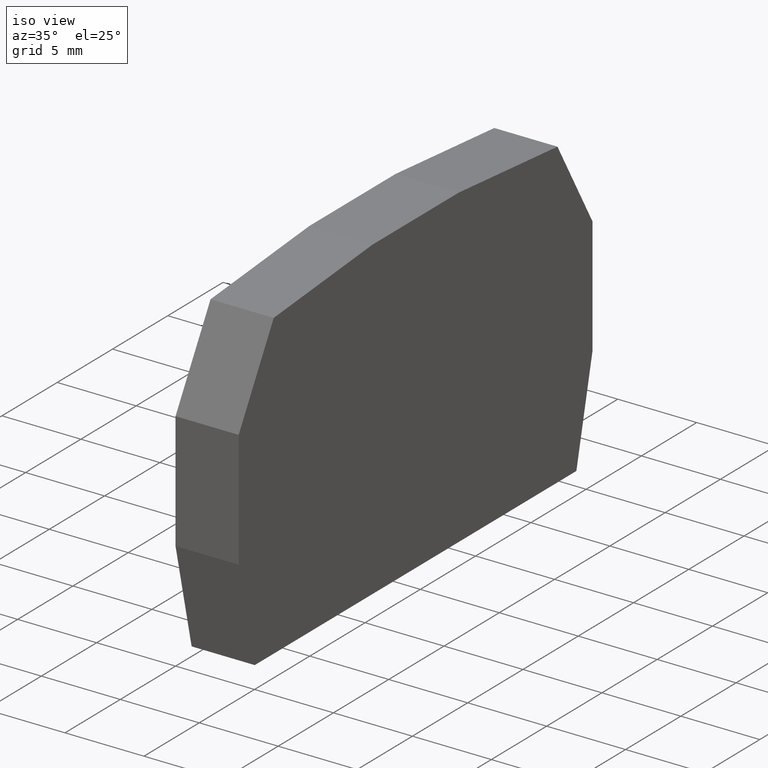
[diagram: clean part render]
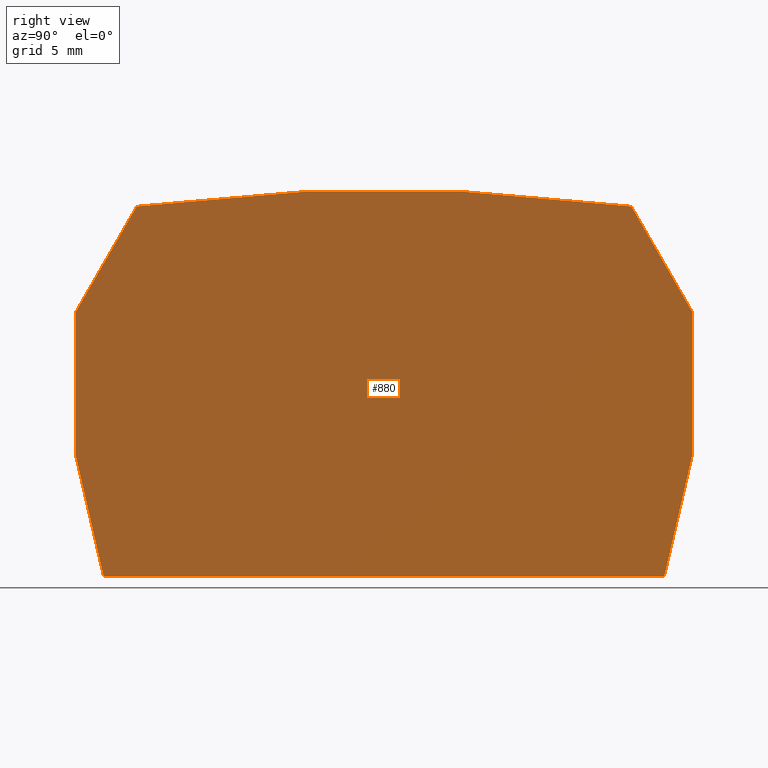
[diagram: tour spotlight — one face highlighted and labeled with its STEP entity id]
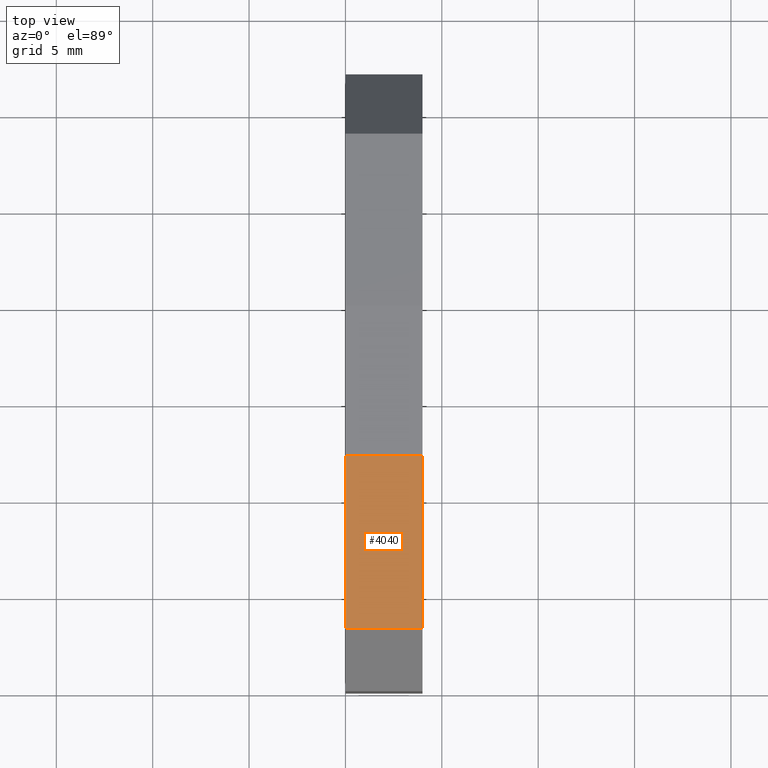
[diagram: tour spotlight — one face highlighted and labeled with its STEP entity id]
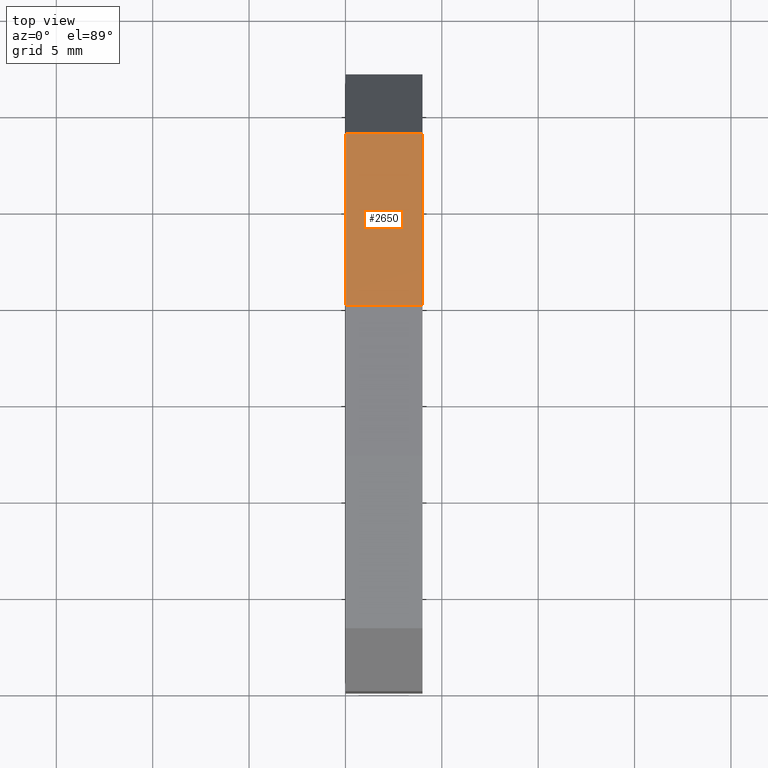
[diagram: tour spotlight — one face highlighted and labeled with its STEP entity id]
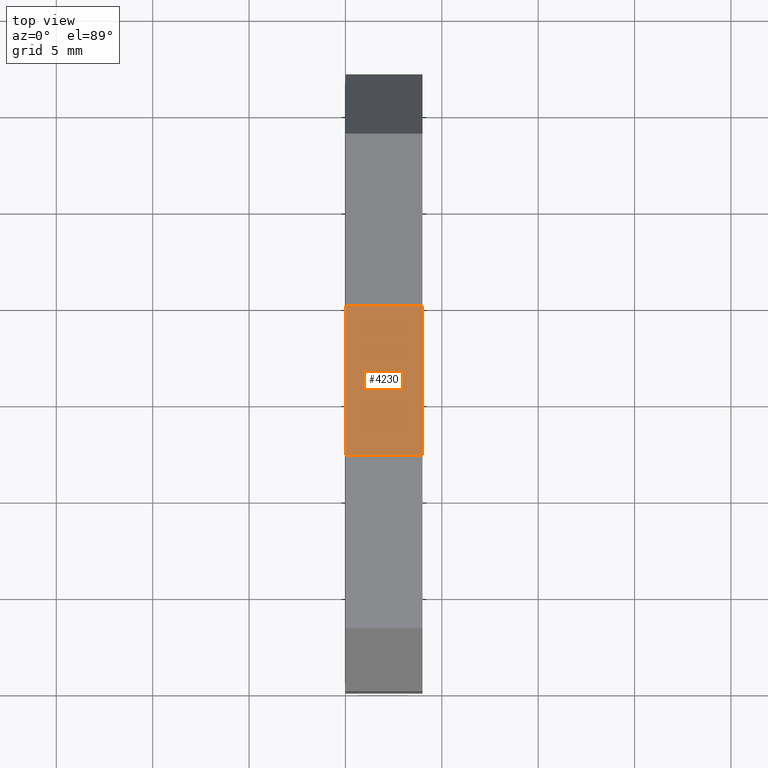
[diagram: tour spotlight — one face highlighted and labeled with its STEP entity id]
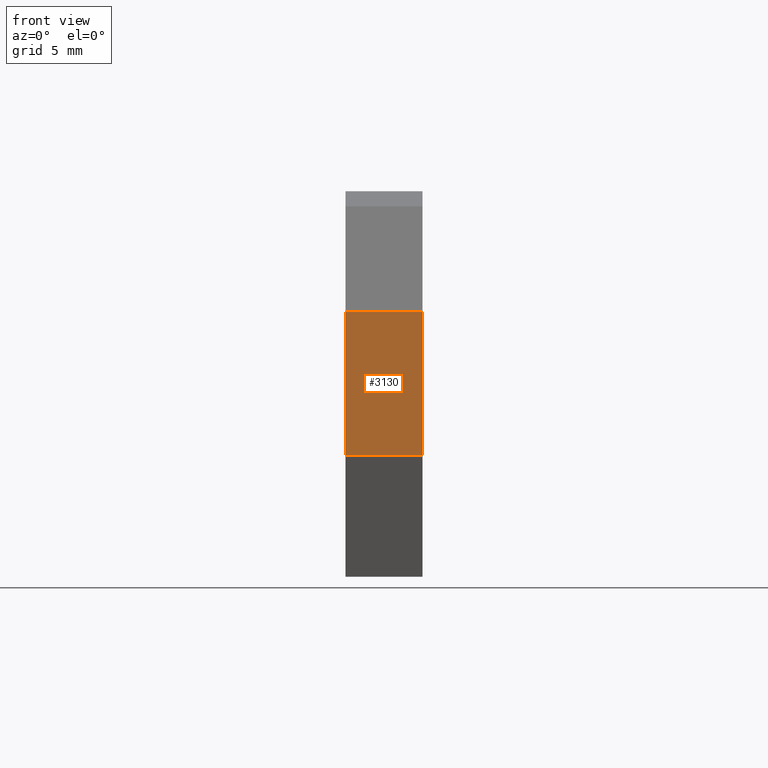
[diagram: tour spotlight — one face highlighted and labeled with its STEP entity id]
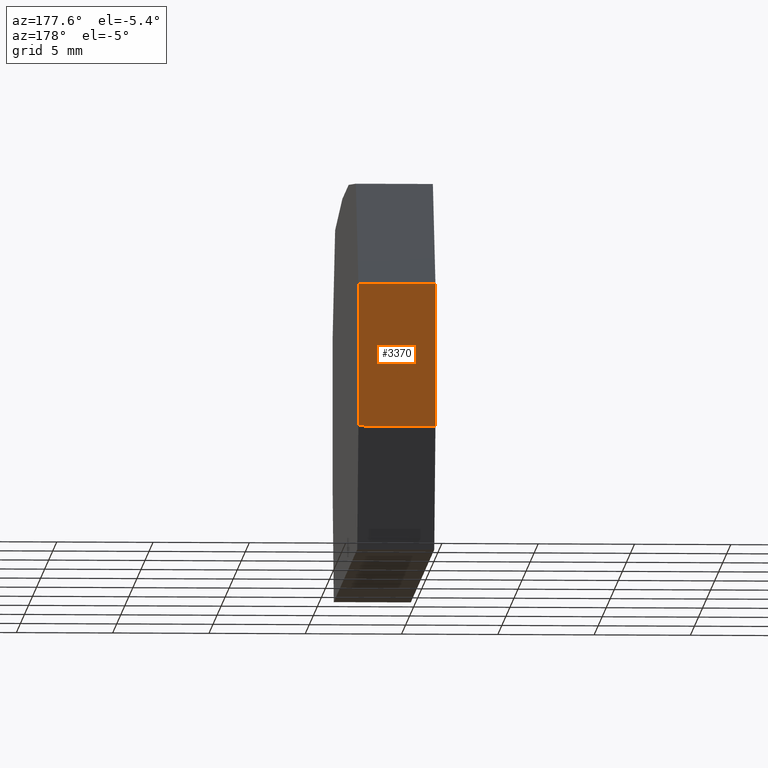
[diagram: tour spotlight — one face highlighted and labeled with its STEP entity id]
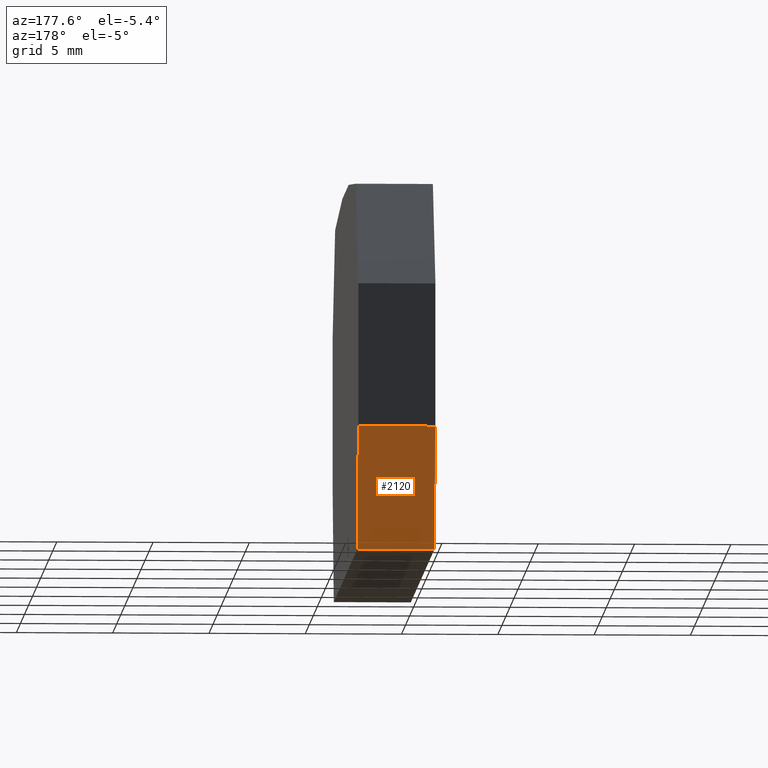
[diagram: tour spotlight — one face highlighted and labeled with its STEP entity id]
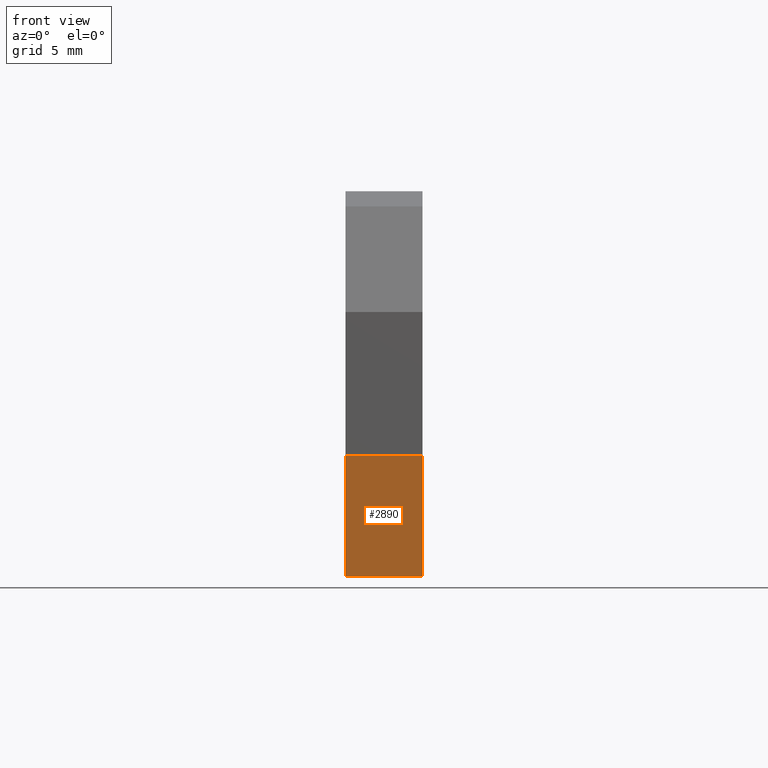
[diagram: tour spotlight — one face highlighted and labeled with its STEP entity id]
A machine part: a face-by-face anatomy tour. The part has 12 B-rep faces; the first image is the clean iso view, then the 8 largest visible faces are spotlighted one at a time (largest first), each with its STEP entity span.

Face 1 — right view, entity #880. In plain terms, the highlighted planar face has unit normal (-1, 0, 0).
Definition (entity closure, byte-faithful):
#10=CARTESIAN_POINT('',(20.2091964718262,86.2957323155951,
4.00000000000001));
#20=DIRECTION('',(0.,0.,1.));
#30=DIRECTION('',(1.,0.,0.));
#40=AXIS2_PLACEMENT_3D('',#10,#20,#30);
#50=PLANE('',#40);
#60=CARTESIAN_POINT('',(41.4852422445195,86.2957323155951,
4.00000000000001));
#70=DIRECTION('',(0.224951054345037,0.974370064784965,0.));
#80=VECTOR('',#70,1.);
#90=LINE('',#60,#80);
#100=CARTESIAN_POINT('',(37.0173254335857,66.9430584408326,
4.00000000000001));
#110=VERTEX_POINT('',#100);
#120=CARTESIAN_POINT('',(38.471795037686,73.2430584408381,
4.00000000000001));
#130=VERTEX_POINT('',#120);
#140=EDGE_CURVE('',#110,#130,#90,.T.);
#150=ORIENTED_EDGE('',*,*,#140,.F.);
#160=CARTESIAN_POINT('',(38.4717950376948,86.2957323155951,
4.00000000000001));
#170=DIRECTION('',(6.80122624885371E-13,1.,0.));
#180=VECTOR('',#170,1.);
#190=LINE('',#160,#180);
#200=CARTESIAN_POINT('',(38.471795037691,80.6770330370464,
4.00000000000001));
#210=VERTEX_POINT('',#200);
#220=EDGE_CURVE('',#130,#210,#190,.T.);
#230=ORIENTED_EDGE('',*,*,#220,.F.);
#240=CARTESIAN_POINT('',(35.2278374967297,86.2957323155951,
4.00000000000001));
#250=DIRECTION('',(-0.4999999999995,0.866025403784727,0.));
#260=VECTOR('',#250,1.);
#270=LINE('',#240,#260);
#280=CARTESIAN_POINT('',(35.305351863756,86.1614734935887,
4.00000000000001));
#290=VERTEX_POINT('',#280);
#300=EDGE_CURVE('',#210,#290,#270,.T.);
#310=ORIENTED_EDGE('',*,*,#300,.F.);
#320=CARTESIAN_POINT('',(20.2091964718262,87.4822159532185,
4.00000000000001));
#330=DIRECTION('',(0.996194698091687,-0.0871557427483274,0.));
#340=VECTOR('',#330,1.);
#350=LINE('',#320,#340);
#360=CARTESIAN_POINT('',(26.3717950376929,86.9430584408399,
4.00000000000001));
#370=VERTEX_POINT('',#360);
#380=EDGE_CURVE('',#370,#290,#350,.T.);
#390=ORIENTED_EDGE('',*,*,#380,.T.);
#400=CARTESIAN_POINT('',(30.9622604321233,86.9430584408368,
4.00000000000001));
#410=DIRECTION('',(-1.,6.73405775586389E-13,0.));
#420=VECTOR('',#410,1.);
#430=LINE('',#400,#420);
#440=CARTESIAN_POINT('',(18.5717950376847,86.9430584408452,
4.00000000000001));
#450=VERTEX_POINT('',#440);
#460=EDGE_CURVE('',#370,#450,#430,.T.);
#470=ORIENTED_EDGE('',*,*,#460,.F.);
#480=CARTESIAN_POINT('',(20.2091964718262,87.0863125039725,
4.00000000000001));
#490=DIRECTION('',(-0.996194698091806,-0.0871557427469682,0.));
#500=VECTOR('',#490,1.);
#510=LINE('',#480,#500);
#520=CARTESIAN_POINT('',(9.63823821163448,86.1614734936074,
4.00000000000001));
#530=VERTEX_POINT('',#520);
#540=EDGE_CURVE('',#450,#530,#510,.T.);
#550=ORIENTED_EDGE('',*,*,#540,.F.);
#560=CARTESIAN_POINT('',(9.71575257865031,86.2957323155951,
4.00000000000001));
#570=DIRECTION('',(0.500000000000682,0.866025403784045,0.));
#580=VECTOR('',#570,1.);
#590=LINE('',#560,#580);
#600=CARTESIAN_POINT('',(6.47179503769135,80.6770330370682,
4.00000000000001));
#610=VERTEX_POINT('',#600);
#620=EDGE_CURVE('',#610,#530,#590,.T.);
#630=ORIENTED_EDGE('',*,*,#620,.T.);
#640=CARTESIAN_POINT('',(6.4717950376952,86.2957323155951,
4.00000000000001));
#650=DIRECTION('',(6.84341472378946E-13,1.,0.));
#660=VECTOR('',#650,1.);
#670=LINE('',#640,#660);
#680=CARTESIAN_POINT('',(6.47179503768626,73.2430584408599,
4.00000000000001));
#690=VERTEX_POINT('',#680);
#700=EDGE_CURVE('',#690,#610,#670,.T.);
#710=ORIENTED_EDGE('',*,*,#700,.T.);
#720=CARTESIAN_POINT('',(3.45834783087646,86.2957323155951,
4.00000000000001));
#730=DIRECTION('',(-0.224951054343708,0.974370064785272,0.));
#740=VECTOR('',#730,1.);
#750=LINE('',#720,#740);
#760=CARTESIAN_POINT('',(7.92626464177793,66.9430584408525,
4.00000000000001));
#770=VERTEX_POINT('',#760);
#780=EDGE_CURVE('',#770,#690,#750,.T.);
#790=ORIENTED_EDGE('',*,*,#780,.T.);
#800=CARTESIAN_POINT('',(20.2091964718262,66.9430584408441,
4.00000000000001));
#810=DIRECTION('',(-1.,6.82232048632159E-13,0.));
#820=VECTOR('',#810,1.);
#830=LINE('',#800,#820);
#840=EDGE_CURVE('',#110,#770,#830,.T.);
#850=ORIENTED_EDGE('',*,*,#840,.T.);
#860=EDGE_LOOP('',(#850,#790,#710,#630,#550,#470,#390,#310,#230,#150));
#870=FACE_OUTER_BOUND('',#860,.T.);
#880=ADVANCED_FACE('',(#870),#50,.F.);

Face 2 — top view, entity #4040. In plain terms, the highlighted planar face has unit normal (0, -0.0872, 0.9962).
Definition (entity closure, byte-faithful):
#280=CARTESIAN_POINT('',(35.305351863756,86.1614734935887,
4.00000000000001));
#290=VERTEX_POINT('',#280);
#320=CARTESIAN_POINT('',(20.2091964718262,87.4822159532185,
4.00000000000001));
#330=DIRECTION('',(0.996194698091687,-0.0871557427483274,0.));
#340=VECTOR('',#330,1.);
#350=LINE('',#320,#340);
#360=CARTESIAN_POINT('',(26.3717950376929,86.9430584408399,
4.00000000000001));
#370=VERTEX_POINT('',#360);
#380=EDGE_CURVE('',#370,#290,#350,.T.);
#1470=CARTESIAN_POINT('',(26.3717950376929,86.9430584408399,
8.00000000000001));
#1480=VERTEX_POINT('',#1470);
#1510=CARTESIAN_POINT('',(20.2091964718262,87.4822159532185,
8.00000000000001));
#1520=DIRECTION('',(0.996194698091687,-0.0871557427483274,0.));
#1530=VECTOR('',#1520,1.);
#1540=LINE('',#1510,#1530);
#1550=CARTESIAN_POINT('',(35.305351863756,86.1614734935887,
8.00000000000001));
#1560=VERTEX_POINT('',#1550);
#1570=EDGE_CURVE('',#1480,#1560,#1540,.T.);
#3520=CARTESIAN_POINT('',(35.305351863756,86.1614734935887,
4.00000000000001));
#3530=DIRECTION('',(0.,0.,-1.));
#3540=VECTOR('',#3530,1.);
#3550=LINE('',#3520,#3540);
#3560=EDGE_CURVE('',#1560,#290,#3550,.T.);
#3880=CARTESIAN_POINT('',(26.3717950376929,86.9430584408399,
4.00000000000001));
#3890=DIRECTION('',(0.0871557427483274,0.996194698091687,0.));
#3900=DIRECTION('',(0.996194698091687,-0.0871557427483274,0.));
#3910=AXIS2_PLACEMENT_3D('',#3880,#3890,#3900);
#3920=PLANE('',#3910);
#3930=ORIENTED_EDGE('',*,*,#3560,.T.);
#3940=ORIENTED_EDGE('',*,*,#1570,.T.);
#3950=CARTESIAN_POINT('',(26.3717950376929,86.9430584408399,
4.00000000000001));
#3960=DIRECTION('',(0.,0.,1.));
#3970=VECTOR('',#3960,1.);
#3980=LINE('',#3950,#3970);
#3990=EDGE_CURVE('',#370,#1480,#3980,.T.);
#4000=ORIENTED_EDGE('',*,*,#3990,.T.);
#4010=ORIENTED_EDGE('',*,*,#380,.F.);
#4020=EDGE_LOOP('',(#4010,#4000,#3940,#3930));
#4030=FACE_OUTER_BOUND('',#4020,.T.);
#4040=ADVANCED_FACE('',(#4030),#3920,.T.);

Face 3 — top view, entity #2650. In plain terms, the highlighted planar face has unit normal (0, 0.0872, 0.9962).
Definition (entity closure, byte-faithful):
#440=CARTESIAN_POINT('',(18.5717950376847,86.9430584408452,
4.00000000000001));
#450=VERTEX_POINT('',#440);
#480=CARTESIAN_POINT('',(20.2091964718262,87.0863125039725,
4.00000000000001));
#490=DIRECTION('',(-0.996194698091806,-0.0871557427469682,0.));
#500=VECTOR('',#490,1.);
#510=LINE('',#480,#500);
#520=CARTESIAN_POINT('',(9.63823821163448,86.1614734936074,
4.00000000000001));
#530=VERTEX_POINT('',#520);
#540=EDGE_CURVE('',#450,#530,#510,.T.);
#1310=CARTESIAN_POINT('',(9.63823821163448,86.1614734936074,
8.00000000000001));
#1320=VERTEX_POINT('',#1310);
#1350=CARTESIAN_POINT('',(20.2091964718262,87.0863125039725,
8.00000000000001));
#1360=DIRECTION('',(-0.996194698091806,-0.0871557427469682,0.));
#1370=VECTOR('',#1360,1.);
#1380=LINE('',#1350,#1370);
#1390=CARTESIAN_POINT('',(18.5717950376979,86.9430584408463,
8.00000000000001));
#1400=VERTEX_POINT('',#1390);
#1410=EDGE_CURVE('',#1400,#1320,#1380,.T.);
#2440=CARTESIAN_POINT('',(10.6754104831562,86.2522143094882,
4.00000000000001));
#2450=DIRECTION('',(-0.0871557427469682,0.996194698091806,0.));
#2460=DIRECTION('',(0.996194698091806,0.0871557427469682,0.));
#2470=AXIS2_PLACEMENT_3D('',#2440,#2450,#2460);
#2480=PLANE('',#2470);
#2490=ORIENTED_EDGE('',*,*,#540,.T.);
#2500=CARTESIAN_POINT('',(18.571795037698,86.9430584408452,
4.00000000000001));
#2510=DIRECTION('',(0.,0.,1.));
#2520=VECTOR('',#2510,1.);
#2530=LINE('',#2500,#2520);
#2540=EDGE_CURVE('',#450,#1400,#2530,.T.);
#2550=ORIENTED_EDGE('',*,*,#2540,.F.);
#2560=ORIENTED_EDGE('',*,*,#1410,.F.);
#2570=CARTESIAN_POINT('',(9.63823821163448,86.1614734936074,
4.00000000000001));
#2580=DIRECTION('',(0.,0.,-1.));
#2590=VECTOR('',#2580,1.);
#2600=LINE('',#2570,#2590);
#2610=EDGE_CURVE('',#1320,#530,#2600,.T.);
#2620=ORIENTED_EDGE('',*,*,#2610,.F.);
#2630=EDGE_LOOP('',(#2620,#2560,#2550,#2490));
#2640=FACE_OUTER_BOUND('',#2630,.T.);
#2650=ADVANCED_FACE('',(#2640),#2480,.T.);

Face 4 — top view, entity #4230. In plain terms, the highlighted planar face has unit normal (0, -0, 1).
Definition (entity closure, byte-faithful):
#360=CARTESIAN_POINT('',(26.3717950376929,86.9430584408399,
4.00000000000001));
#370=VERTEX_POINT('',#360);
#400=CARTESIAN_POINT('',(30.9622604321233,86.9430584408368,
4.00000000000001));
#410=DIRECTION('',(-1.,6.73405775586389E-13,0.));
#420=VECTOR('',#410,1.);
#430=LINE('',#400,#420);
#440=CARTESIAN_POINT('',(18.5717950376847,86.9430584408452,
4.00000000000001));
#450=VERTEX_POINT('',#440);
#460=EDGE_CURVE('',#370,#450,#430,.T.);
#1390=CARTESIAN_POINT('',(18.5717950376979,86.9430584408463,
8.00000000000001));
#1400=VERTEX_POINT('',#1390);
#1430=CARTESIAN_POINT('',(30.9622604321233,86.9430584408368,
8.00000000000001));
#1440=DIRECTION('',(-1.,6.73405775586389E-13,0.));
#1450=VECTOR('',#1440,1.);
#1460=LINE('',#1430,#1450);
#1470=CARTESIAN_POINT('',(26.3717950376929,86.9430584408399,
8.00000000000001));
#1480=VERTEX_POINT('',#1470);
#1490=EDGE_CURVE('',#1480,#1400,#1460,.T.);
#2500=CARTESIAN_POINT('',(18.571795037698,86.9430584408452,
4.00000000000001));
#2510=DIRECTION('',(0.,0.,1.));
#2520=VECTOR('',#2510,1.);
#2530=LINE('',#2500,#2520);
#2540=EDGE_CURVE('',#450,#1400,#2530,.T.);
#3950=CARTESIAN_POINT('',(26.3717950376929,86.9430584408399,
4.00000000000001));
#3960=DIRECTION('',(0.,0.,1.));
#3970=VECTOR('',#3960,1.);
#3980=LINE('',#3950,#3970);
#3990=EDGE_CURVE('',#370,#1480,#3980,.T.);
#4120=CARTESIAN_POINT('',(18.571795037698,86.9430584408452,
4.00000000000001));
#4130=DIRECTION('',(6.73405775586389E-13,1.,0.));
#4140=DIRECTION('',(1.,-6.73405775586389E-13,0.));
#4150=AXIS2_PLACEMENT_3D('',#4120,#4130,#4140);
#4160=PLANE('',#4150);
#4170=ORIENTED_EDGE('',*,*,#3990,.F.);
#4180=ORIENTED_EDGE('',*,*,#1490,.F.);
#4190=ORIENTED_EDGE('',*,*,#2540,.T.);
#4200=ORIENTED_EDGE('',*,*,#460,.T.);
#4210=EDGE_LOOP('',(#4200,#4190,#4180,#4170));
#4220=FACE_OUTER_BOUND('',#4210,.T.);
#4230=ADVANCED_FACE('',(#4220),#4160,.T.);

Face 5 — front view, entity #3130. In plain terms, the highlighted planar face has unit normal (0, -1, -0).
Definition (entity closure, byte-faithful):
#120=CARTESIAN_POINT('',(38.471795037686,73.2430584408381,
4.00000000000001));
#130=VERTEX_POINT('',#120);
#160=CARTESIAN_POINT('',(38.4717950376948,86.2957323155951,
4.00000000000001));
#170=DIRECTION('',(6.80122624885371E-13,1.,0.));
#180=VECTOR('',#170,1.);
#190=LINE('',#160,#180);
#200=CARTESIAN_POINT('',(38.471795037691,80.6770330370464,
4.00000000000001));
#210=VERTEX_POINT('',#200);
#220=EDGE_CURVE('',#130,#210,#190,.T.);
#1630=CARTESIAN_POINT('',(38.471795037691,80.6770330370464,
8.00000000000001));
#1640=VERTEX_POINT('',#1630);
#1670=CARTESIAN_POINT('',(38.4717950376948,86.2957323155951,
8.00000000000001));
#1680=DIRECTION('',(6.80122624885371E-13,1.,0.));
#1690=VECTOR('',#1680,1.);
#1700=LINE('',#1670,#1690);
#1710=CARTESIAN_POINT('',(38.4717950376859,73.2430584408381,
8.00000000000001));
#1720=VERTEX_POINT('',#1710);
#1730=EDGE_CURVE('',#1720,#1640,#1700,.T.);
#2800=CARTESIAN_POINT('',(38.471795037686,73.2430584408381,
4.00000000000001));
#2810=DIRECTION('',(0.,0.,1.));
#2820=VECTOR('',#2810,1.);
#2830=LINE('',#2800,#2820);
#2840=EDGE_CURVE('',#130,#1720,#2830,.T.);
#2970=CARTESIAN_POINT('',(38.4717950376906,80.141134652184,
4.00000000000001));
#2980=DIRECTION('',(1.,-6.80122624885371E-13,0.));
#2990=DIRECTION('',(-6.80122624885371E-13,-1.,0.));
#3000=AXIS2_PLACEMENT_3D('',#2970,#2980,#2990);
#3010=PLANE('',#3000);
#3020=ORIENTED_EDGE('',*,*,#220,.T.);
#3030=ORIENTED_EDGE('',*,*,#2840,.F.);
#3040=ORIENTED_EDGE('',*,*,#1730,.F.);
#3050=CARTESIAN_POINT('',(38.471795037691,80.6770330370464,
4.00000000000001));
#3060=DIRECTION('',(0.,0.,-1.));
#3070=VECTOR('',#3060,1.);
#3080=LINE('',#3050,#3070);
#3090=EDGE_CURVE('',#1640,#210,#3080,.T.);
#3100=ORIENTED_EDGE('',*,*,#3090,.F.);
#3110=EDGE_LOOP('',(#3100,#3040,#3030,#3020));
#3120=FACE_OUTER_BOUND('',#3110,.T.);
#3130=ADVANCED_FACE('',(#3120),#3010,.T.);

Face 6 — auxiliary view, entity #3370. In plain terms, the highlighted planar face has unit normal (0, 1, 0).
Definition (entity closure, byte-faithful):
#600=CARTESIAN_POINT('',(6.47179503769135,80.6770330370682,
4.00000000000001));
#610=VERTEX_POINT('',#600);
#640=CARTESIAN_POINT('',(6.4717950376952,86.2957323155951,
4.00000000000001));
#650=DIRECTION('',(6.84341472378946E-13,1.,0.));
#660=VECTOR('',#650,1.);
#670=LINE('',#640,#660);
#680=CARTESIAN_POINT('',(6.47179503768626,73.2430584408599,
4.00000000000001));
#690=VERTEX_POINT('',#680);
#700=EDGE_CURVE('',#690,#610,#670,.T.);
#1150=CARTESIAN_POINT('',(6.47179503768626,73.2430584408599,
8.00000000000001));
#1160=VERTEX_POINT('',#1150);
#1190=CARTESIAN_POINT('',(6.4717950376952,86.2957323155951,
8.00000000000001));
#1200=DIRECTION('',(6.84341472378946E-13,1.,0.));
#1210=VECTOR('',#1200,1.);
#1220=LINE('',#1190,#1210);
#1230=CARTESIAN_POINT('',(6.47179503769135,80.6770330370682,
8.00000000000001));
#1240=VERTEX_POINT('',#1230);
#1250=EDGE_CURVE('',#1160,#1240,#1220,.T.);
#1970=CARTESIAN_POINT('',(6.47179503768626,73.2430584408599,
4.00000000000001));
#1980=DIRECTION('',(0.,0.,1.));
#1990=VECTOR('',#1980,1.);
#2000=LINE('',#1970,#1990);
#2010=EDGE_CURVE('',#690,#1160,#2000,.T.);
#3210=CARTESIAN_POINT('',(6.47179503768626,73.2430584408599,
4.00000000000001));
#3220=DIRECTION('',(-1.,6.84341472378946E-13,0.));
#3230=DIRECTION('',(6.84341472378946E-13,1.,0.));
#3240=AXIS2_PLACEMENT_3D('',#3210,#3220,#3230);
#3250=PLANE('',#3240);
#3260=CARTESIAN_POINT('',(6.47179503769135,80.6770330370682,
4.00000000000001));
#3270=DIRECTION('',(0.,0.,-1.));
#3280=VECTOR('',#3270,1.);
#3290=LINE('',#3260,#3280);
#3300=EDGE_CURVE('',#1240,#610,#3290,.T.);
#3310=ORIENTED_EDGE('',*,*,#3300,.T.);
#3320=ORIENTED_EDGE('',*,*,#1250,.T.);
#3330=ORIENTED_EDGE('',*,*,#2010,.T.);
#3340=ORIENTED_EDGE('',*,*,#700,.F.);
#3350=EDGE_LOOP('',(#3340,#3330,#3320,#3310));
#3360=FACE_OUTER_BOUND('',#3350,.T.);
#3370=ADVANCED_FACE('',(#3360),#3250,.T.);

Face 7 — auxiliary view, entity #2120. In plain terms, the highlighted planar face has unit normal (0, 0.9744, -0.225).
Definition (entity closure, byte-faithful):
#680=CARTESIAN_POINT('',(6.47179503768626,73.2430584408599,
4.00000000000001));
#690=VERTEX_POINT('',#680);
#720=CARTESIAN_POINT('',(3.45834783087646,86.2957323155951,
4.00000000000001));
#730=DIRECTION('',(-0.224951054343708,0.974370064785272,0.));
#740=VECTOR('',#730,1.);
#750=LINE('',#720,#740);
#760=CARTESIAN_POINT('',(7.92626464177793,66.9430584408525,
4.00000000000001));
#770=VERTEX_POINT('',#760);
#780=EDGE_CURVE('',#770,#690,#750,.T.);
#1070=CARTESIAN_POINT('',(7.92626464177793,66.9430584408525,
8.00000000000001));
#1080=VERTEX_POINT('',#1070);
#1110=CARTESIAN_POINT('',(3.45834783087646,86.2957323155951,
8.00000000000001));
#1120=DIRECTION('',(-0.224951054343708,0.974370064785272,0.));
#1130=VECTOR('',#1120,1.);
#1140=LINE('',#1110,#1130);
#1150=CARTESIAN_POINT('',(6.47179503768626,73.2430584408599,
8.00000000000001));
#1160=VERTEX_POINT('',#1150);
#1170=EDGE_CURVE('',#1080,#1160,#1140,.T.);
#1910=CARTESIAN_POINT('',(7.74733049366075,67.7181073865082,
4.00000000000001));
#1920=DIRECTION('',(-0.974370064785272,-0.224951054343708,-0.));
#1930=DIRECTION('',(-0.224951054343708,0.974370064785272,0.));
#1940=AXIS2_PLACEMENT_3D('',#1910,#1920,#1930);
#1950=PLANE('',#1940);
#1960=ORIENTED_EDGE('',*,*,#780,.F.);
#1970=CARTESIAN_POINT('',(6.47179503768626,73.2430584408599,
4.00000000000001));
#1980=DIRECTION('',(0.,0.,1.));
#1990=VECTOR('',#1980,1.);
#2000=LINE('',#1970,#1990);
#2010=EDGE_CURVE('',#690,#1160,#2000,.T.);
#2020=ORIENTED_EDGE('',*,*,#2010,.F.);
#2030=ORIENTED_EDGE('',*,*,#1170,.T.);
#2040=CARTESIAN_POINT('',(7.92626464177794,66.9430584408525,
4.00000000000001));
#2050=DIRECTION('',(0.,0.,-1.));
#2060=VECTOR('',#2050,1.);
#2070=LINE('',#2040,#2060);
#2080=EDGE_CURVE('',#1080,#770,#2070,.T.);
#2090=ORIENTED_EDGE('',*,*,#2080,.F.);
#2100=EDGE_LOOP('',(#2090,#2030,#2020,#1960));
#2110=FACE_OUTER_BOUND('',#2100,.T.);
#2120=ADVANCED_FACE('',(#2110),#1950,.T.);

Face 8 — front view, entity #2890. In plain terms, the highlighted planar face has unit normal (0, -0.9744, -0.225).
Definition (entity closure, byte-faithful):
#60=CARTESIAN_POINT('',(41.4852422445195,86.2957323155951,
4.00000000000001));
#70=DIRECTION('',(0.224951054345037,0.974370064784965,0.));
#80=VECTOR('',#70,1.);
#90=LINE('',#60,#80);
#100=CARTESIAN_POINT('',(37.0173254335857,66.9430584408326,
4.00000000000001));
#110=VERTEX_POINT('',#100);
#120=CARTESIAN_POINT('',(38.471795037686,73.2430584408381,
4.00000000000001));
#130=VERTEX_POINT('',#120);
#140=EDGE_CURVE('',#110,#130,#90,.T.);
#1050=CARTESIAN_POINT('',(37.0173254335857,66.9430584408326,
8.00000000000001));
#1060=VERTEX_POINT('',#1050);
#1710=CARTESIAN_POINT('',(38.4717950376859,73.2430584408381,
8.00000000000001));
#1720=VERTEX_POINT('',#1710);
#1750=CARTESIAN_POINT('',(41.4852422445195,86.2957323155951,
8.00000000000001));
#1760=DIRECTION('',(0.224951054345037,0.974370064784965,0.));
#1770=VECTOR('',#1760,1.);
#1780=LINE('',#1750,#1770);
#1790=EDGE_CURVE('',#1060,#1720,#1780,.T.);
#2280=CARTESIAN_POINT('',(37.0173254335857,66.9430584408326,
4.00000000000001));
#2290=DIRECTION('',(0.,0.,-1.));
#2300=VECTOR('',#2290,1.);
#2310=LINE('',#2280,#2300);
#2320=EDGE_CURVE('',#1060,#110,#2310,.T.);
#2730=CARTESIAN_POINT('',(38.471795037686,73.2430584408381,
4.00000000000001));
#2740=DIRECTION('',(0.974370064784965,-0.224951054345037,0.));
#2750=DIRECTION('',(-0.224951054345037,-0.974370064784965,0.));
#2760=AXIS2_PLACEMENT_3D('',#2730,#2740,#2750);
#2770=PLANE('',#2760);
#2780=ORIENTED_EDGE('',*,*,#2320,.T.);
#2790=ORIENTED_EDGE('',*,*,#1790,.F.);
#2800=CARTESIAN_POINT('',(38.471795037686,73.2430584408381,
4.00000000000001));
#2810=DIRECTION('',(0.,0.,1.));
#2820=VECTOR('',#2810,1.);
#2830=LINE('',#2800,#2820);
#2840=EDGE_CURVE('',#130,#1720,#2830,.T.);
#2850=ORIENTED_EDGE('',*,*,#2840,.T.);
#2860=ORIENTED_EDGE('',*,*,#140,.T.);
#2870=EDGE_LOOP('',(#2860,#2850,#2790,#2780));
#2880=FACE_OUTER_BOUND('',#2870,.T.);
#2890=ADVANCED_FACE('',(#2880),#2770,.T.);